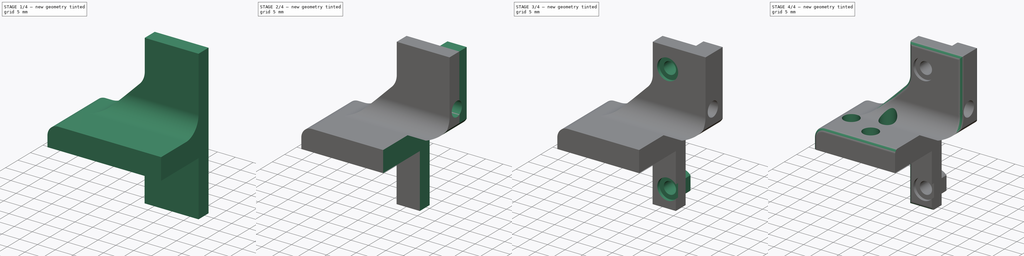
[diagram: build sequence overview — one tinted view per stage of 4, left to right]
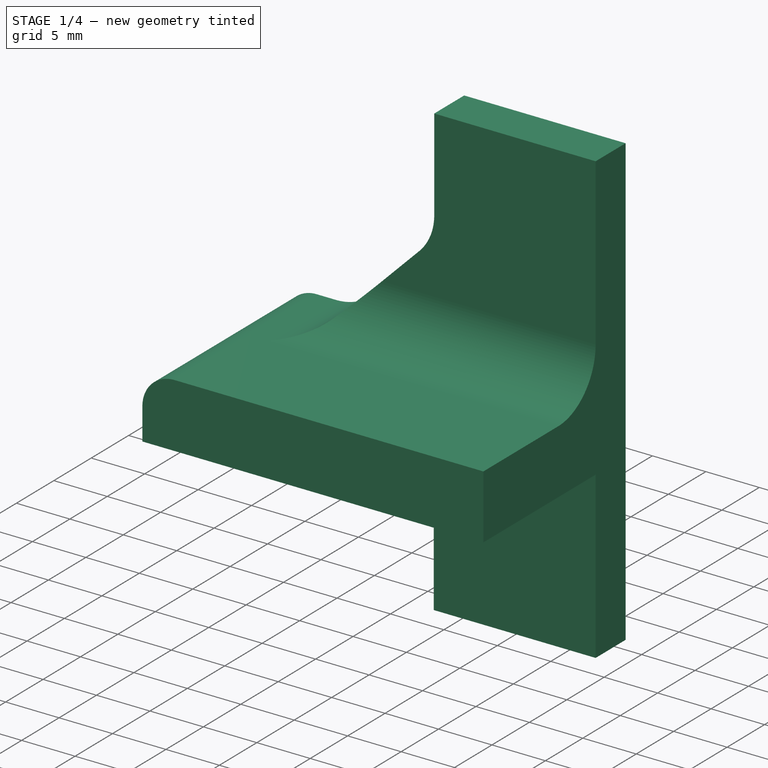
[diagram: stage 1 of 4 — iso view after this stage's code; geometry added in this stage tinted green]
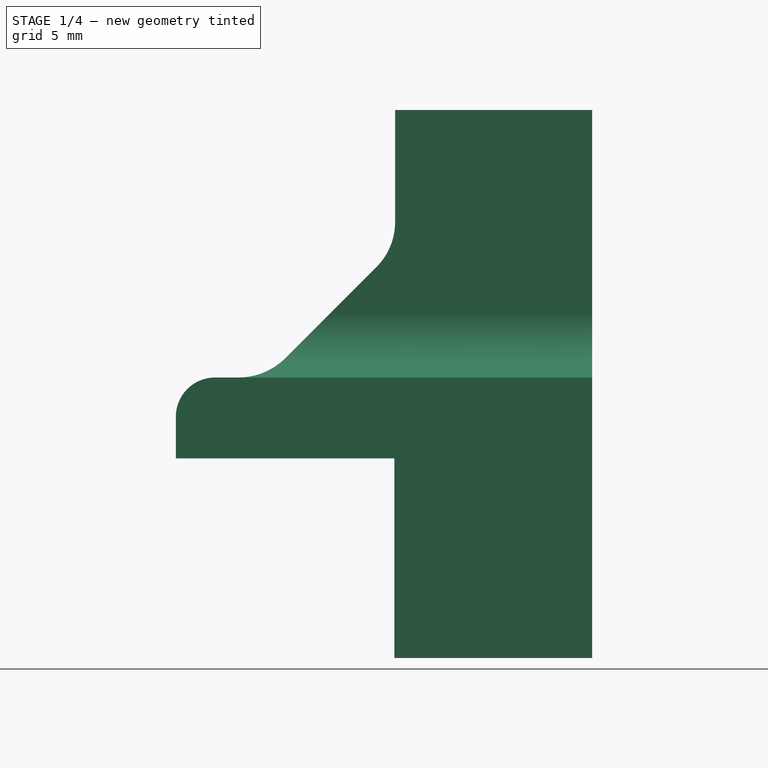
[diagram: stage 1 of 4 — front view after this stage's code; geometry added in this stage tinted green]
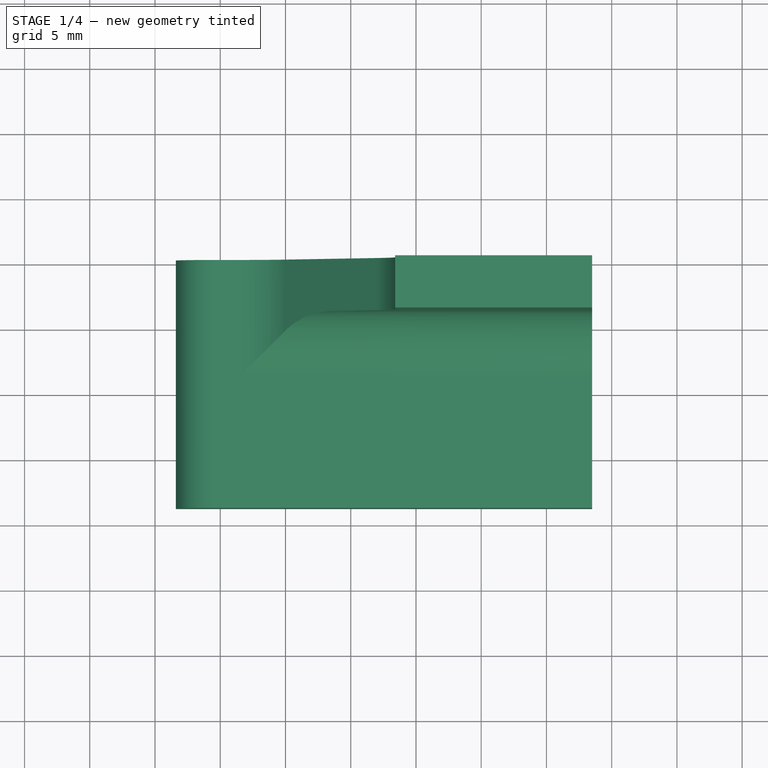
[diagram: stage 1 of 4 — top view after this stage's code; geometry added in this stage tinted green]
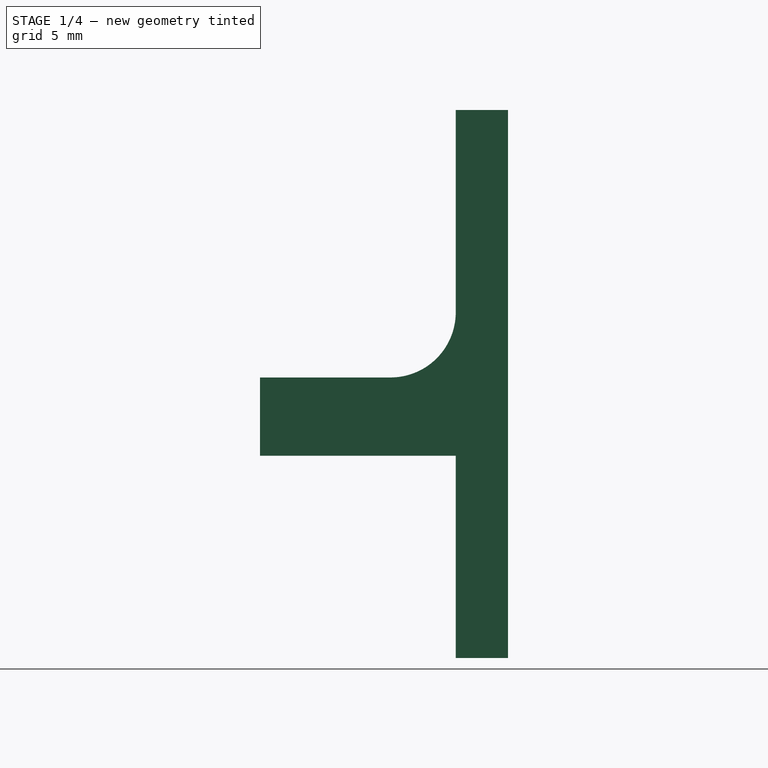
[diagram: stage 1 of 4 — right view after this stage's code; geometry added in this stage tinted green]
FCSTD DOCUMENT  (FreeCAD 0.19R24291 (Git))
Label: Extruder CAN Support
License: All rights reserved
LicenseURL: http://en.wikipedia.org/wiki/All_rights_reserved
objects: Sketcher::SketchObject×9, PartDesign::Pocket×6, PartDesign::Pad×3, Part::Feature×2, PartDesign::Body×1, Part::Fillet×1
note: 31 computed .brp shape members not serialized (recipe doc carries the construction recipe); baked Part::Feature solids carry a one-line shape summary decoded from their .brp

FEATURE [Part::Feature] Part__Feature  label="SOLID005"
  Placement = pos=(97.1,-431.1,-54.85) rot=(0,0,1;0rad)
  shape: bbox 23.92 x 20.76 x 41.84 mm, 96 faces (baked)
FEATURE [Sketcher::SketchObject] Sketch002
  FullyConstrained = true
  MapMode = 5
  Placement = pos=(0,0,0) rot=(0.57735,0.57735,0.57735;2.0944rad)
  Support = -> [YZ_Plane001]
  sketch-geometry (9):
    g0: LineSegment StartX=-19 StartY=21.5 StartZ=0 EndX=-19 EndY=15.5 EndZ=0
    g1: LineSegment StartX=-19 StartY=15.5 StartZ=0 EndX=-4 EndY=15.5 EndZ=0
    g2: LineSegment StartX=-4 StartY=15.5 StartZ=0 EndX=-4 EndY=0 EndZ=0
    g3: LineSegment StartX=-4 StartY=0 StartZ=0 EndX=0 EndY=0 EndZ=0
    g4: LineSegment StartX=0 StartY=0 StartZ=0 EndX=0 EndY=42 EndZ=0
    g5: LineSegment StartX=0 StartY=42 StartZ=0 EndX=-4 EndY=42 EndZ=0
    g6: LineSegment StartX=-4 StartY=42 StartZ=0 EndX=-4 EndY=26.5 EndZ=0
    g7: LineSegment StartX=-19 StartY=21.5 StartZ=0 EndX=-9 EndY=21.5 EndZ=0
    g8: ArcOfCircle CenterX=-9 CenterY=26.5 CenterZ=0 NormalX=0 NormalY=0 NormalZ=1 AngleXU=0 Radius=5 StartAngle=4.71239 EndAngle=6.28319
  constraints (27):
    c: Vertical(g0)
    c: Coincident(g0,g1)
    c: Horizontal(g1)
    c: Coincident(g1,g2)
    c: Vertical(g2)
    c: Coincident(g2,g3)
    c: Horizontal(g3)
    c: Coincident(g3,g4)
    c: Vertical(g4)
    c: Coincident(g4,g5)
    c: Horizontal(g5)
    c: Coincident(g5,g6)
    c: Vertical(g6)
    c: Coincident(g7,g0)
    c: Horizontal(g7)
    c: Coincident(g8,g7)
    c: Coincident(g8,g6)
    c: Angle(g8) = 1.5708
    c: DistanceY(g0,g0) = 6
    c: Vertical(g1,g6)
    c: DistanceX(g5,g5) = 4
    c: DistanceY(g4,g4) = 42
    c: DistanceY(g2,g2) = 15.5
    c: DistanceX(g1,g1) = 15
    c: DistanceY(g6,g6) = 15.5
    c: DistanceX(g7,g7) = 10
    c: Coincident(g3,g-1)
FEATURE [PartDesign::Pad] Pad001
  Direction = (1,1,1)
  Length = 8.5
  Length2 = 23.4
  Placement = pos=(0,0,0) rot=(0.57735,0.57735,0.57735;2.0944rad)
  Profile = -> Sketch002
  Reversed = true
  Type = 4
FEATURE [Sketcher::SketchObject] Sketch003
  ExternalGeometry = -> [Pad001]
  FullyConstrained = false
  MapMode = 5
  Placement = pos=(0,1e-16,0) rot=(0.57735,0.57735,0.57735;4.18879rad)
  Support = -> [Pad001]
  sketch-geometry (12):
    g0: LineSegment StartX=-5.3e-15 StartY=-23.4 StartZ=0 EndX=15.3 EndY=-23.4 EndZ=0
    g1: LineSegment StartX=15.3 StartY=-23.4 StartZ=0 EndX=15.3 EndY=-6.65 EndZ=0
    g2: LineSegment StartX=15.3 StartY=-6.65 StartZ=0 EndX=-5.3e-15 EndY=-6.65 EndZ=0
    g3: LineSegment StartX=-5.3e-15 StartY=-6.65 StartZ=0 EndX=-5.3e-15 EndY=-23.4 EndZ=0
    g4: LineSegment StartX=42 StartY=-23.4 StartZ=0 EndX=42 EndY=-6.6 EndZ=0
    g5: LineSegment StartX=42 StartY=-6.6 StartZ=0 EndX=33.4 EndY=-6.6 EndZ=0
    g6: LineSegment StartX=29.98 StartY=-8.01661 StartZ=0 EndX=22.9873 EndY=-15.0093 EndZ=0
    g7: LineSegment StartX=21.5 StartY=-18.6 StartZ=0 EndX=21.5 EndY=-20.3928 EndZ=0
    g8: LineSegment StartX=18.6302 StartY=-23.4 StartZ=0 EndX=42 EndY=-23.4 EndZ=0
    g9: ArcOfCircle CenterX=33.4 CenterY=-11.4366 CenterZ=0 NormalX=0 NormalY=0 NormalZ=1 AngleXU=0 Radius=4.8366 StartAngle=1.5708 EndAngle=2.35619
    g10: ArcOfCircle CenterX=26.578 CenterY=-18.6 CenterZ=0 NormalX=0 NormalY=0 NormalZ=1 AngleXU=0 Radius=5.07802 StartAngle=2.35619 EndAngle=3.14159
    g11: ArcOfCircle CenterX=18.4896 CenterY=-20.3928 CenterZ=0 NormalX=0 NormalY=0 NormalZ=1 AngleXU=0 Radius=3.01045 StartAngle=4.75911 EndAngle=6.28319
  constraints (29):
    c: Coincident(g0,g1)
    c: Coincident(g1,g2)
    c: Coincident(g2,g3)
    c: Coincident(g3,g0)
    c: Horizontal(g0)
    c: Horizontal(g2)
    c: Vertical(g1)
    c: Vertical(g3)
    c: Coincident(g0,g-3)
    c: DistanceY(g3,g3) = 16.75
    c: DistanceX(g0,g0) = 15.3
    c: Coincident(g-3,g4)
    c: Vertical(g4)
    c: Coincident(g4,g5)
    c: Horizontal(g5)
    c: Coincident(g8,g4)
    c: Horizontal(g8)
    c: Tangent(g6,g9) = -1.5708
    c: Tangent(g5,g9) = -1.5708
    c: DistanceY(g4,g4) = 16.8
    c: DistanceX(g5,g5) = 8.6
    c: Tangent(g6,g10) = -1.5708
    c: Tangent(g7,g10) = -1.5708
    c: PointOnObject(g7,g-5)
    c: DistanceY(g4,g7) = 4.8
    c: Tangent(g7,g11) = 1.5708
    c: PointOnObject(g7,g-5)
    c: Coincident(g11,g8)
    c: Angle(g8,g6) = 0.785398
FEATURE [PartDesign::Pocket] Pocket001
  BaseFeature = -> Pad001
  Length = 50
  Length2 = 100
  Placement = pos=(0,0,0) rot=(0.57735,0.57735,0.57735;2.0944rad)
  Profile = -> Sketch003
  Type = 0
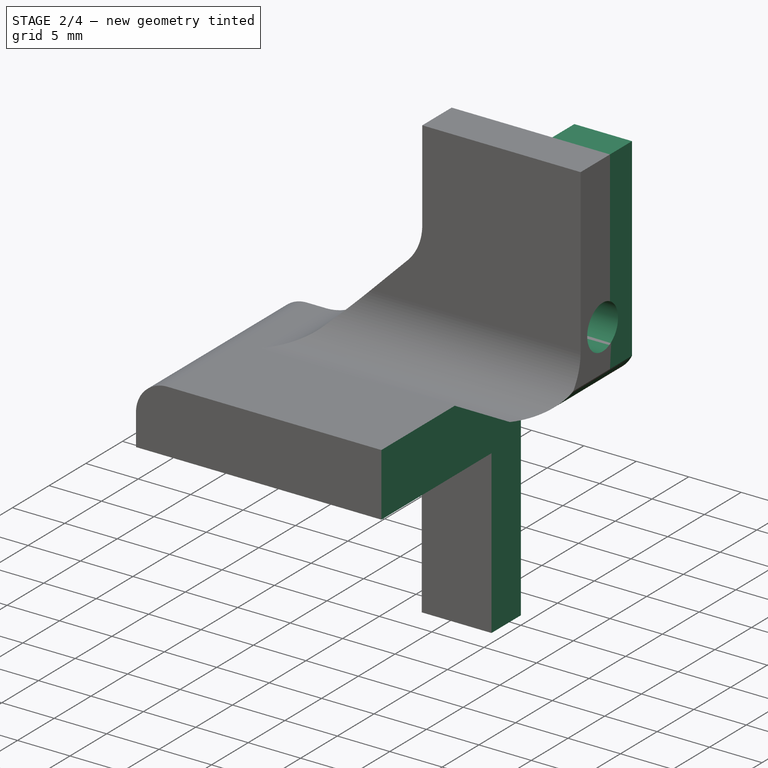
[diagram: stage 2 of 4 — iso view after this stage's code; geometry added in this stage tinted green]
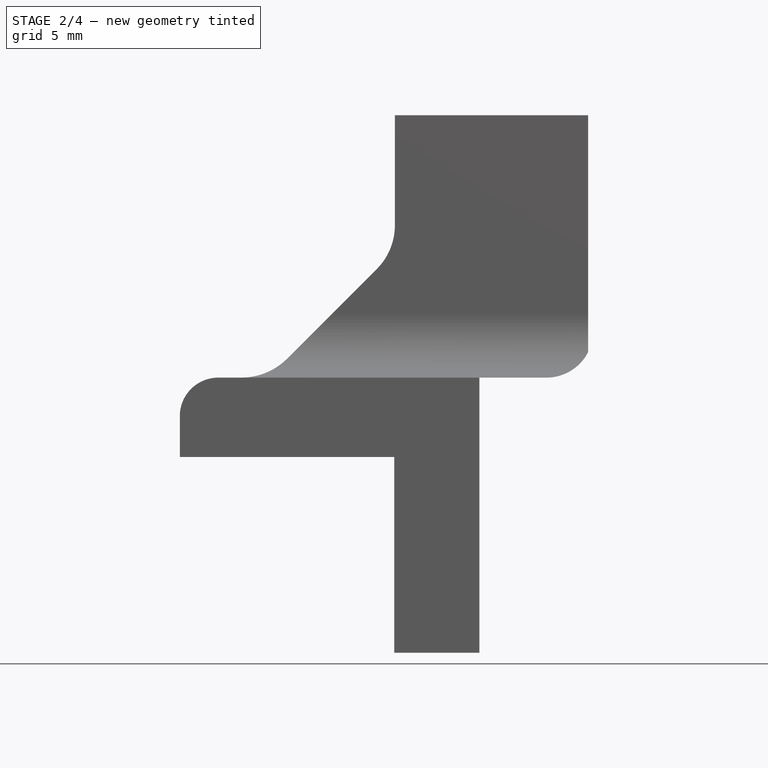
[diagram: stage 2 of 4 — front view after this stage's code; geometry added in this stage tinted green]
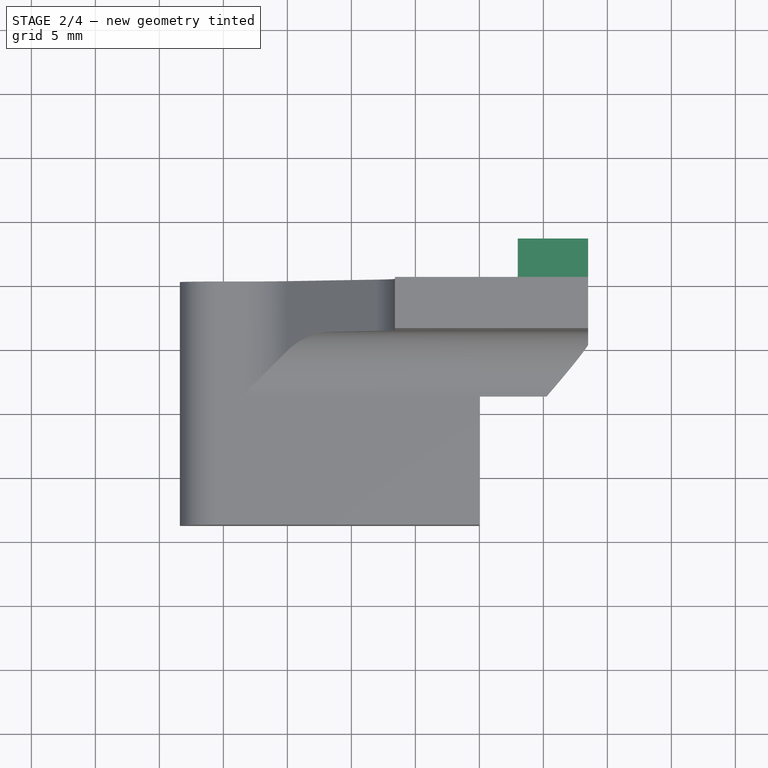
[diagram: stage 2 of 4 — top view after this stage's code; geometry added in this stage tinted green]
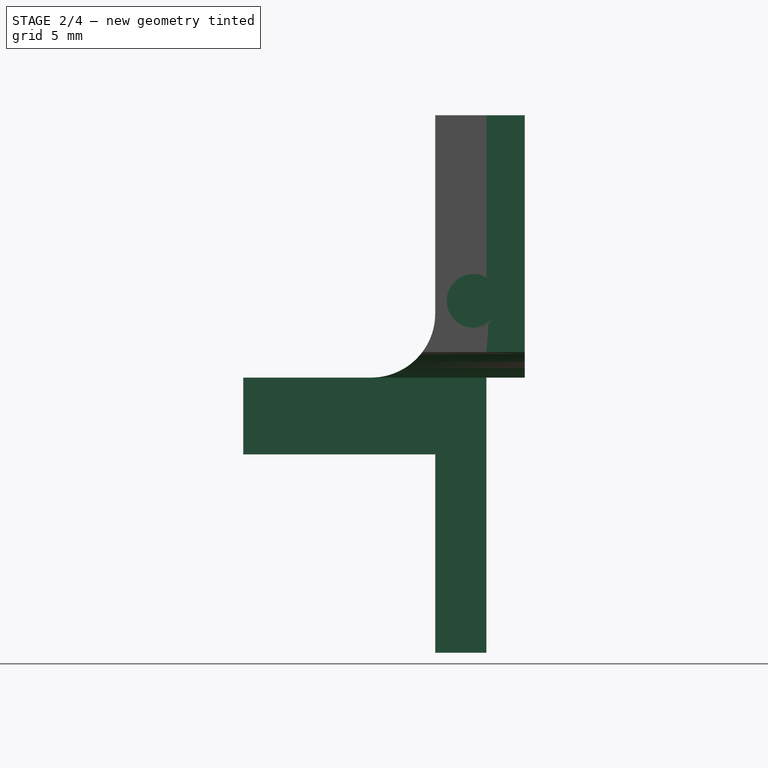
[diagram: stage 2 of 4 — right view after this stage's code; geometry added in this stage tinted green]
FEATURE [Sketcher::SketchObject] Sketch
  ExternalGeometry = -> [Pocket001]
  FullyConstrained = true
  MapMode = 5
  Placement = pos=(0,1e-16,0) rot=(0.57735,0.57735,0.57735;4.18879rad)
  Support = -> [Pocket001]
  sketch-geometry (4):
    g0: LineSegment StartX=0 StartY=3 StartZ=0 EndX=42 EndY=3 EndZ=0
    g1: LineSegment StartX=42 StartY=3 StartZ=0 EndX=42 EndY=8.5 EndZ=0
    g2: LineSegment StartX=42 StartY=8.5 StartZ=0 EndX=0 EndY=8.5 EndZ=0
    g3: LineSegment StartX=0 StartY=8.5 StartZ=0 EndX=0 EndY=3 EndZ=0
  constraints (11):
    c: Coincident(g0,g1)
    c: Coincident(g1,g2)
    c: Coincident(g2,g3)
    c: Horizontal(g0)
    c: Horizontal(g2)
    c: Vertical(g1)
    c: Vertical(g3)
    c: Coincident(g3,g0)
    c: PointOnObject(g0,g-2)
    c: Coincident(g1,g-3)
    c: DistanceY(g1,g1) = 5.5
FEATURE [PartDesign::Pad] Pad
  BaseFeature = -> Pocket001
  Direction = (1,1,1)
  Length = 3
  Length2 = 100
  Placement = pos=(0,0,0) rot=(0.57735,0.57735,0.57735;2.0944rad)
  Profile = -> Sketch
  Type = 0
FEATURE [Sketcher::SketchObject] Sketch004
  ExternalGeometry = -> [Pad]
  FullyConstrained = false
  MapMode = 5
  Placement = pos=(1.3e-15,3,-1.8e-15) rot=(0.57735,0.57735,0.57735;4.18879rad)
  Support = -> [Pad]
  sketch-geometry (5):
    g0: LineSegment StartX=21.5 StartY=0 StartZ=0 EndX=0 EndY=0 EndZ=0
    g1: LineSegment StartX=0 StartY=0 StartZ=0 EndX=0 EndY=8.5 EndZ=0
    g2: LineSegment StartX=0 StartY=8.5 StartZ=0 EndX=23.5 EndY=8.5 EndZ=0
    g3: ArcOfCircle CenterX=25.152 CenterY=5.24296 CenterZ=0 NormalX=0 NormalY=0 NormalZ=1 AngleXU=0 Radius=3.65205 StartAngle=2.0402 EndAngle=3.13759
    g4: LineSegment StartX=21.5 StartY=5.25757 StartZ=0 EndX=21.5 EndY=0 EndZ=0
  constraints (12):
    c: PointOnObject(g2,g-3)
    c: DistanceX(g2,g-3) = 18.5
    c: Coincident(g0,g-1)
    c: Horizontal(g0)
    c: Coincident(g0,g1)
    c: Coincident(g1,g-3)
    c: Horizontal(g2)
    c: Coincident(g3,g2)
    c: PointOnObject(g3,g-4)
    c: Coincident(g4,g3)
    c: Coincident(g4,g0)
    c: Vertical(g4)
FEATURE [PartDesign::Pocket] Pocket
  BaseFeature = -> Pad
  Length = 50
  Length2 = 100
  Placement = pos=(0,0,0) rot=(0.57735,0.57735,0.57735;2.0944rad)
  Profile = -> Sketch004
  Type = 0
FEATURE [Sketcher::SketchObject] Sketch005
  ExternalGeometry = -> [Pocket]
  FullyConstrained = true
  MapMode = 5
  Placement = pos=(8.5,-1.9e-15,1.9e-15) rot=(0.57735,0.57735,0.57735;2.0944rad)
  Support = -> [Pocket]
  sketch-geometry (1):
    g0: Circle CenterX=-1 CenterY=27.5 CenterZ=0 NormalX=0 NormalY=0 NormalZ=1 AngleXU=0 Radius=2.1
  constraints (3):
    c: DistanceY(g0,g-3) = 14.5
    c: Radius(g0) = 2.1
    c: DistanceX(g-3,g0) = 3
FEATURE [PartDesign::Pocket] Pocket002
  BaseFeature = -> Pocket
  Length = 5
  Length2 = 100
  Placement = pos=(0,0,0) rot=(0.57735,0.57735,0.57735;2.0944rad)
  Profile = -> Sketch005
  Type = 0
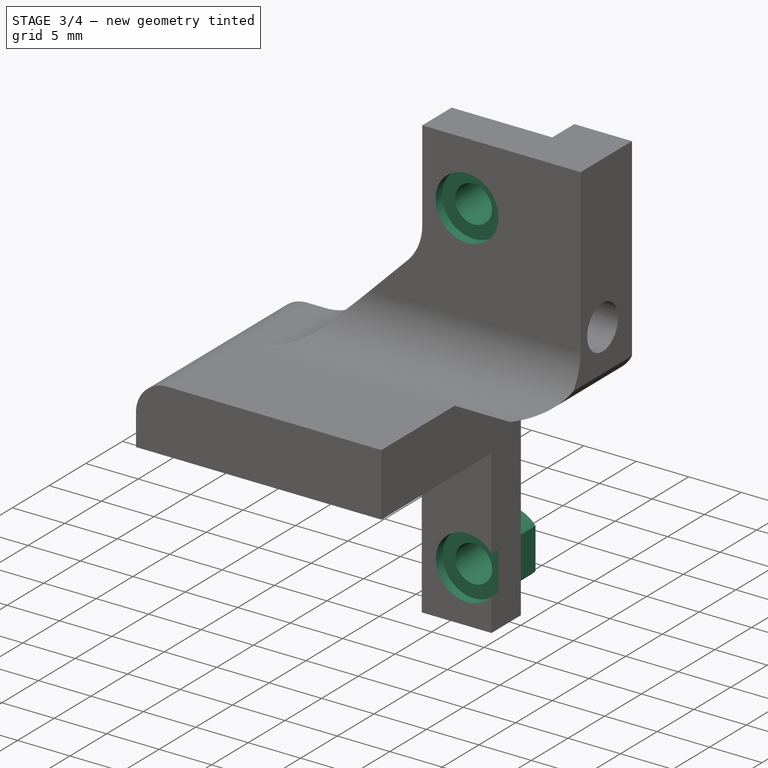
[diagram: stage 3 of 4 — iso view after this stage's code; geometry added in this stage tinted green]
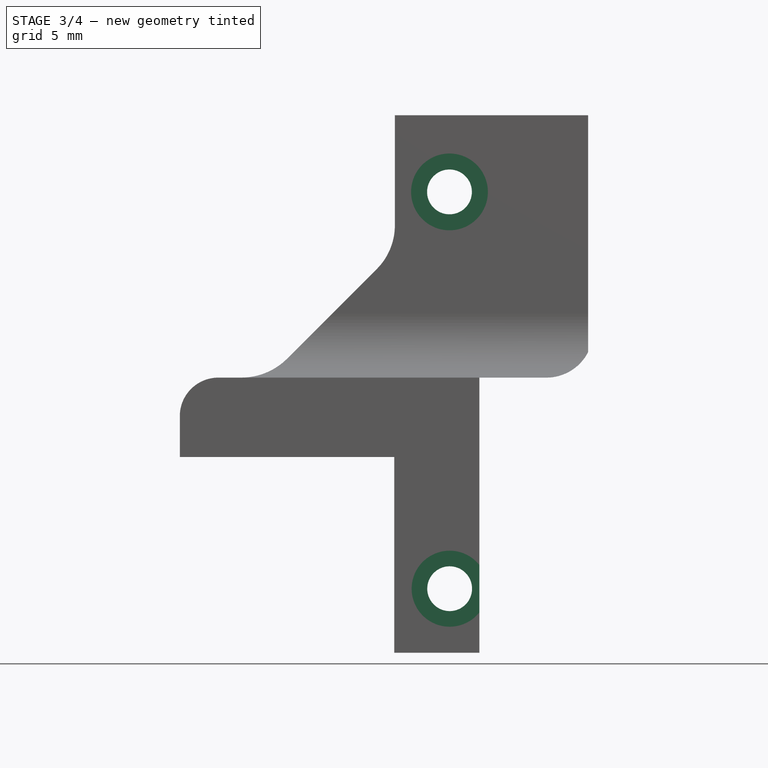
[diagram: stage 3 of 4 — front view after this stage's code; geometry added in this stage tinted green]
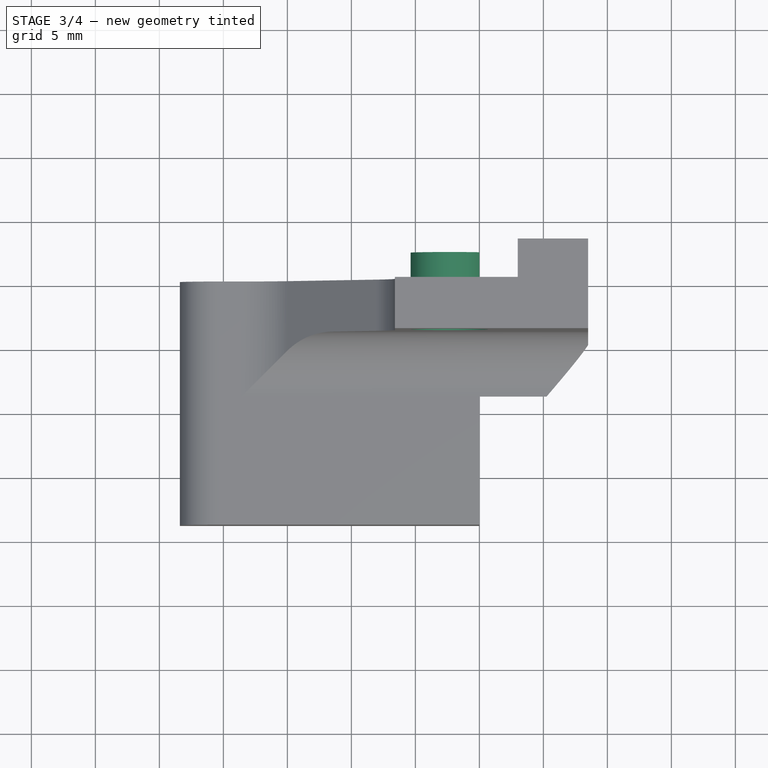
[diagram: stage 3 of 4 — top view after this stage's code; geometry added in this stage tinted green]
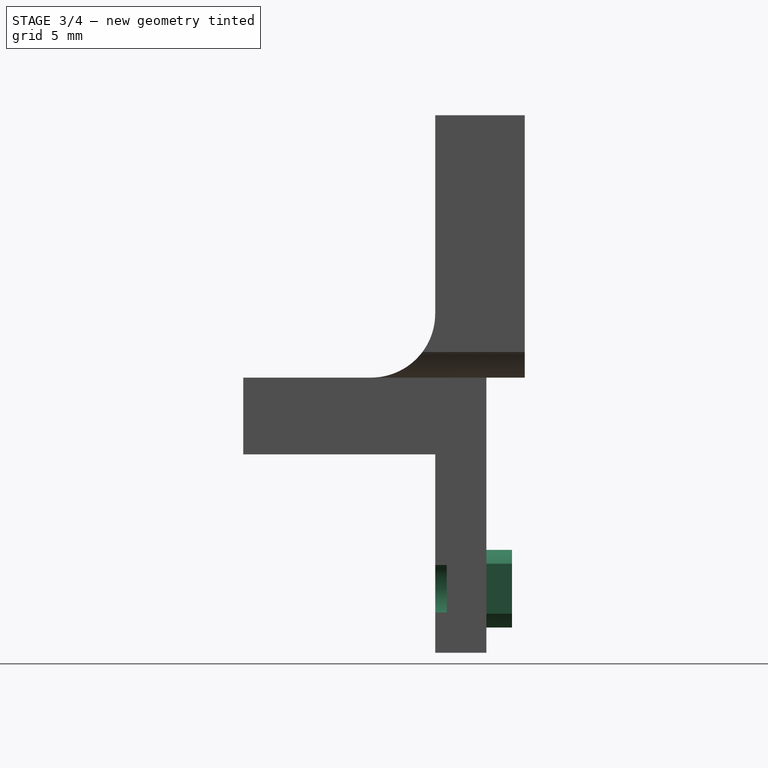
[diagram: stage 3 of 4 — right view after this stage's code; geometry added in this stage tinted green]
FEATURE [Sketcher::SketchObject] Sketch006
  FullyConstrained = false
  MapMode = 5
  Placement = pos=(0,1e-16,0) rot=(0.57735,0.57735,0.57735;4.18879rad)
  Support = -> [Pocket002]
  sketch-geometry (6):
    g0: ArcOfCircle CenterX=5.007 CenterY=-2.32016 CenterZ=0 NormalX=0 NormalY=0 NormalZ=1 AngleXU=0 Radius=3.02982 StartAngle=2.26935 EndAngle=7.15543
    g1: Circle CenterX=5.007 CenterY=-2.32016 CenterZ=0 NormalX=0 NormalY=0 NormalZ=1 AngleXU=0 Radius=1.75
    g2: ArcOfCircle CenterX=36.0075 CenterY=-2.33413 CenterZ=0 NormalX=0 NormalY=0 NormalZ=1 AngleXU=0 Radius=3.03488 StartAngle=2.26416 EndAngle=7.16062
    g3: Circle CenterX=36.0075 CenterY=-2.33413 CenterZ=0 NormalX=0 NormalY=0 NormalZ=1 AngleXU=0 Radius=1.75
    g4: LineSegment StartX=34.0679 StartY=-4e-16 StartZ=0 EndX=37.9472 EndY=4e-16 EndZ=0
    g5: LineSegment StartX=3.05849 StartY=-1.38e-14 StartZ=0 EndX=6.9555 EndY=-1.24e-14 EndZ=0
  constraints (12):
    c: PointOnObject(g0,g-1)
    c: PointOnObject(g0,g-1)
    c: Coincident(g1,g0)
    c: Radius(g1) = 1.75
    c: PointOnObject(g2,g-1)
    c: PointOnObject(g2,g-1)
    c: Coincident(g3,g2)
    c: Radius(g3) = 1.75
    c: Coincident(g4,g2)
    c: Coincident(g4,g2)
    c: Coincident(g5,g0)
    c: Coincident(g5,g0)
FEATURE [PartDesign::Pad] Pad002
  BaseFeature = -> Pocket002
  Direction = (1,1,1)
  Length = 2
  Length2 = 100
  Placement = pos=(0,0,0) rot=(0.57735,0.57735,0.57735;2.0944rad)
  Profile = -> Sketch006
  Type = 0
FEATURE [Sketcher::SketchObject] Sketch007
  ExternalGeometry = -> [Pad002]
  FullyConstrained = false
  MapMode = 5
  Placement = pos=(9e-16,2,-3e-15) rot=(0.57735,0.57735,0.57735;4.18879rad)
  Support = -> [Pad002]
  sketch-geometry (2):
    g0: Circle CenterX=5.007 CenterY=-2.32016 CenterZ=0 NormalX=0 NormalY=0 NormalZ=1 AngleXU=0 Radius=1.75
    g1: Circle CenterX=36.0075 CenterY=-2.33413 CenterZ=0 NormalX=0 NormalY=0 NormalZ=1 AngleXU=0 Radius=1.75
  constraints (2):
    c: Coincident(g0,g-3)
    c: Coincident(g1,g-4)
FEATURE [PartDesign::Pocket] Pocket003
  BaseFeature = -> Pad002
  Length = 10
  Length2 = 100
  Placement = pos=(0,0,0) rot=(0.57735,0.57735,0.57735;2.0944rad)
  Profile = -> Sketch007
  Type = 0
FEATURE [Sketcher::SketchObject] Sketch008
  ExternalGeometry = -> [Pocket003]
  FullyConstrained = false
  MapMode = 5
  Placement = pos=(-1.8e-15,-4,9e-16) rot=(-0.57735,-0.57735,0.57735;4.18879rad)
  Support = -> [Pocket003]
  sketch-geometry (2):
    g0: Circle CenterX=-36.0075 CenterY=-2.33413 CenterZ=0 NormalX=0 NormalY=0 NormalZ=1 AngleXU=0 Radius=3.00004
    g1: Circle CenterX=-5.007 CenterY=-2.32016 CenterZ=0 NormalX=0 NormalY=0 NormalZ=1 AngleXU=0 Radius=2.97025
  constraints (2):
    c: Coincident(g0,g-3)
    c: Coincident(g1,g-4)
FEATURE [PartDesign::Pocket] Pocket004
  BaseFeature = -> Pocket003
  Length = 0.9
  Length2 = 100
  Placement = pos=(0,0,0) rot=(0.57735,0.57735,0.57735;2.0944rad)
  Profile = -> Sketch008
  Type = 0
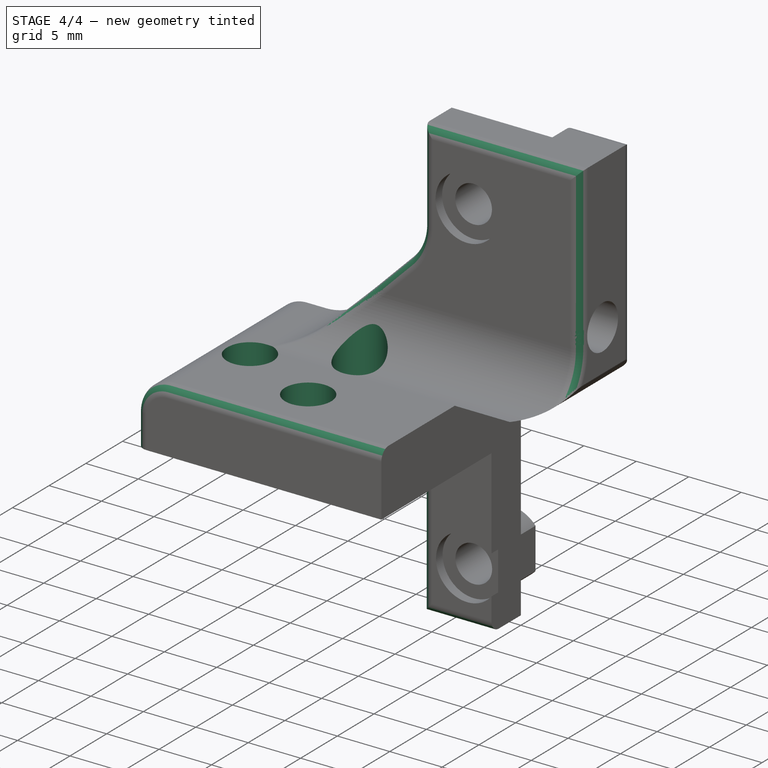
[diagram: stage 4 of 4 — iso view after this stage's code; geometry added in this stage tinted green]
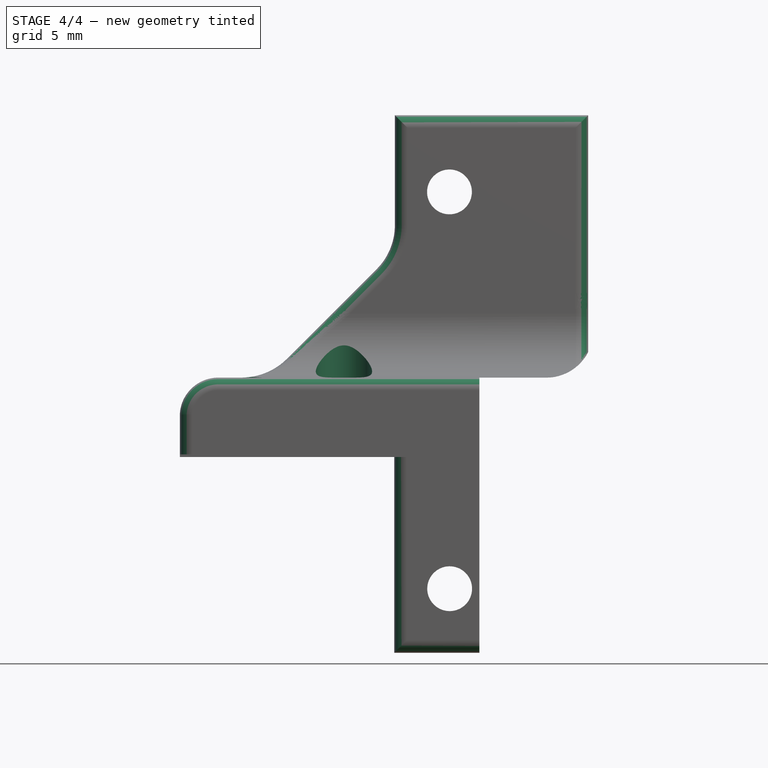
[diagram: stage 4 of 4 — front view after this stage's code; geometry added in this stage tinted green]
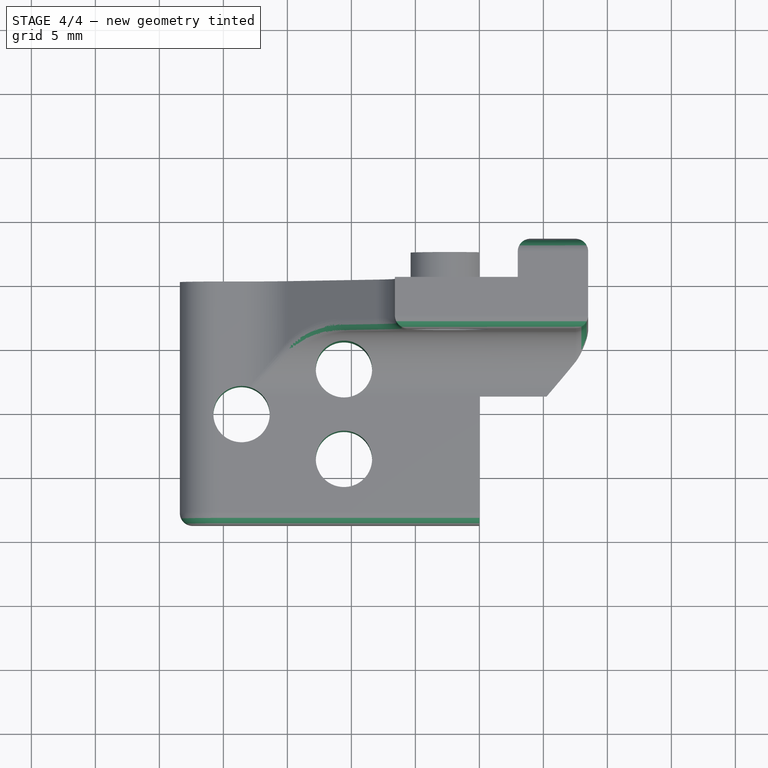
[diagram: stage 4 of 4 — top view after this stage's code; geometry added in this stage tinted green]
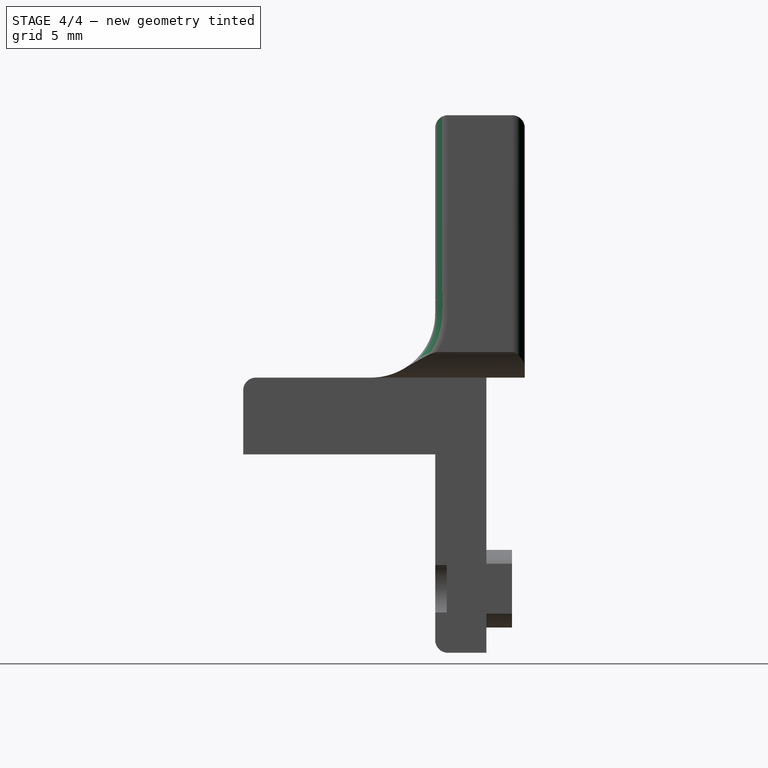
[diagram: stage 4 of 4 — right view after this stage's code; geometry added in this stage tinted green]
FEATURE [Sketcher::SketchObject] Sketch009
  FullyConstrained = false
  MapMode = 5
  Placement = pos=(-3.4e-15,6e-15,15.3) rot=(0.707107,0.707107,0;3.14159rad)
  Support = -> [Pocket004]
  sketch-geometry (3):
    g0: Circle CenterX=-13.8594 CenterY=-10.5791 CenterZ=0 NormalX=0 NormalY=0 NormalZ=1 AngleXU=0 Radius=2.2
    g1: Circle CenterX=-6.85935 CenterY=-10.5791 CenterZ=0 NormalX=0 NormalY=0 NormalZ=1 AngleXU=0 Radius=2.2
    g2: Circle CenterX=-10.3594 CenterY=-18.5791 CenterZ=0 NormalX=0 NormalY=0 NormalZ=1 AngleXU=0 Radius=2.2
  constraints (7):
    c: Horizontal(g0,g1)
    c: Radius(g0) = 2.2
    c: Equal(g0,g1)
    c: Equal(g0,g2)
    c: DistanceX(g0,g1) = 7
    c: DistanceY(g2,g0) = 8
    c: DistanceX(g0,g2) = 3.5
FEATURE [PartDesign::Pocket] Pocket005
  BaseFeature = -> Pocket004
  Length = 20
  Length2 = 100
  Placement = pos=(0,0,0) rot=(0.57735,0.57735,0.57735;2.0944rad)
  Profile = -> Sketch009
  Type = 0
FEATURE [PartDesign::Body] Body001
  Group = -> [Sketch002,Pad001,Sketch003,Pocket001,Sketch,Pad,Sketch004,Pocket,Sketch005,Pocket002,Sketch006,Pad002,Sketch007,Pocket003,Sketch008,Pocket004,Sketch009,Pocket005]
  Origin = -> Origin001
  Tip = -> Pocket005
FEATURE [Part::Fillet] Fillet  label="Can Support"
  Base = -> Pocket005
  Edges = 9 edges r=1: [Edge4,Edge56,Edge57,Edge94,Edge96,Edge100,Edge110,Edge111,Edge114]
FEATURE [Part::Feature] Fillet001  label="Can Support001"
  shape: bbox 32.15 x 22 x 42 mm, 68 faces (baked)
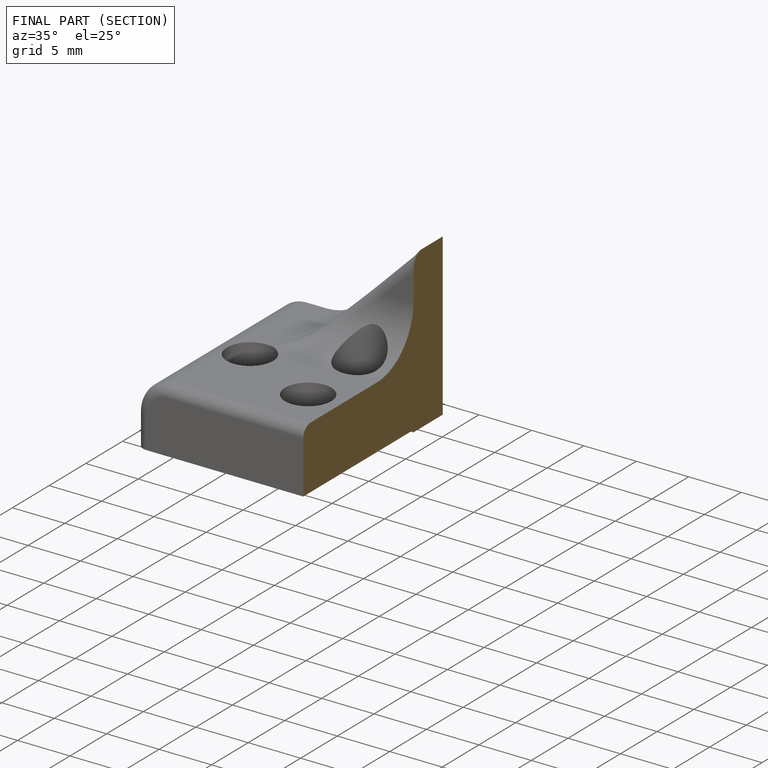
[diagram: finished part — half-section view (interior)]
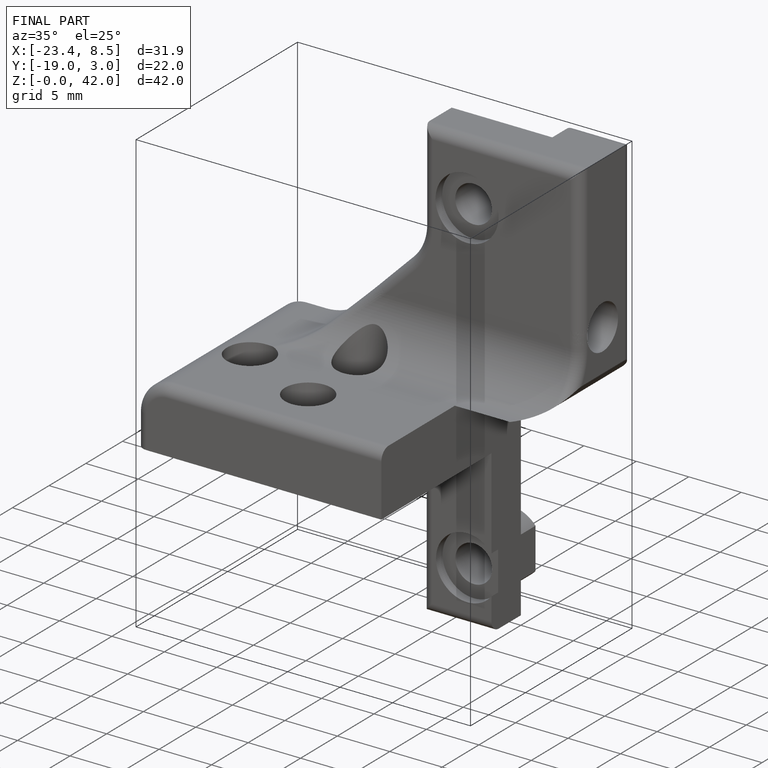
[diagram: finished part — iso view with bounding-box wireframe]
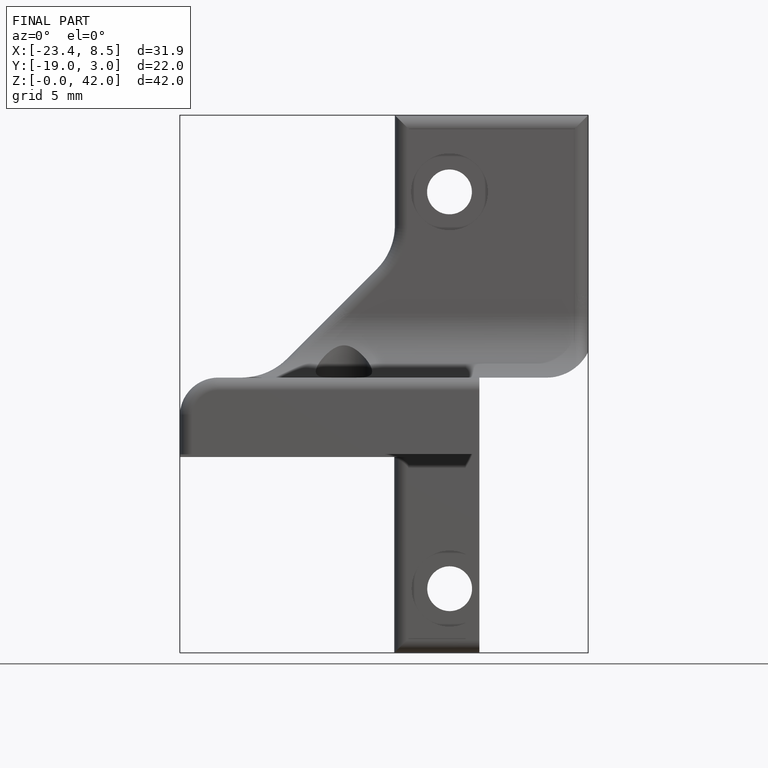
[diagram: finished part — front view with bounding-box wireframe]
